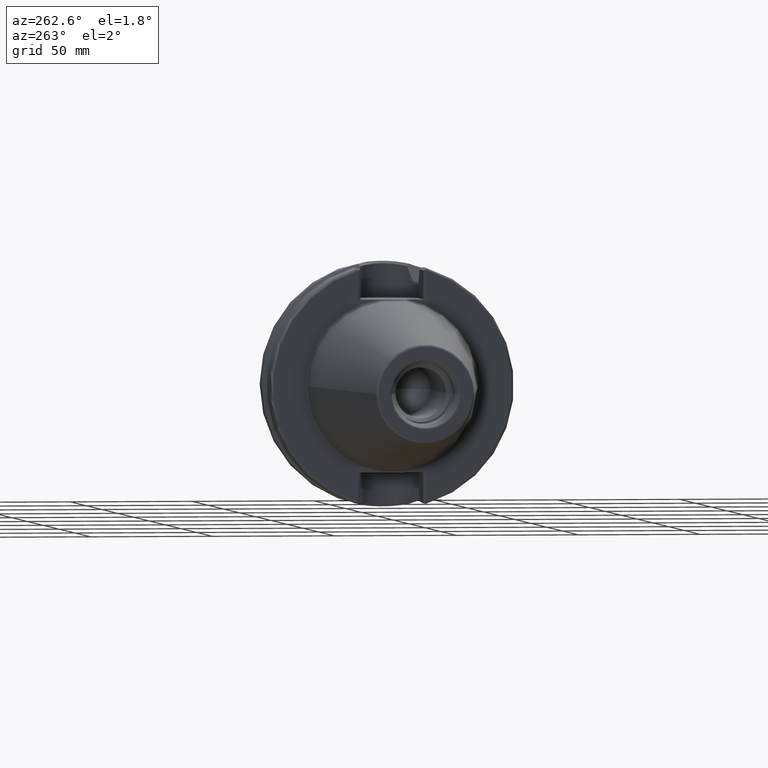
[diagram: clean part render]
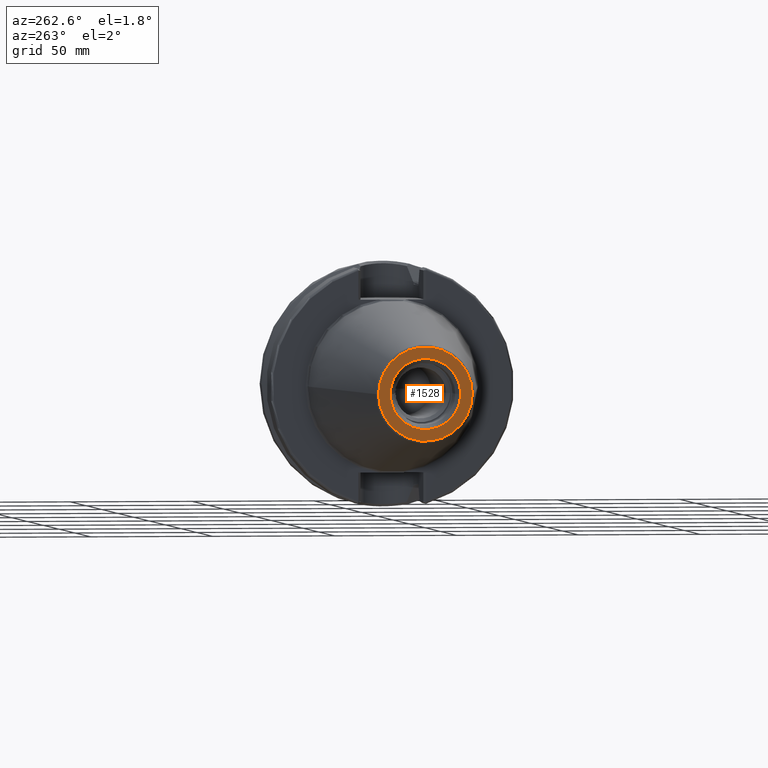
[diagram: same view with one face highlighted and labeled with its STEP entity id]
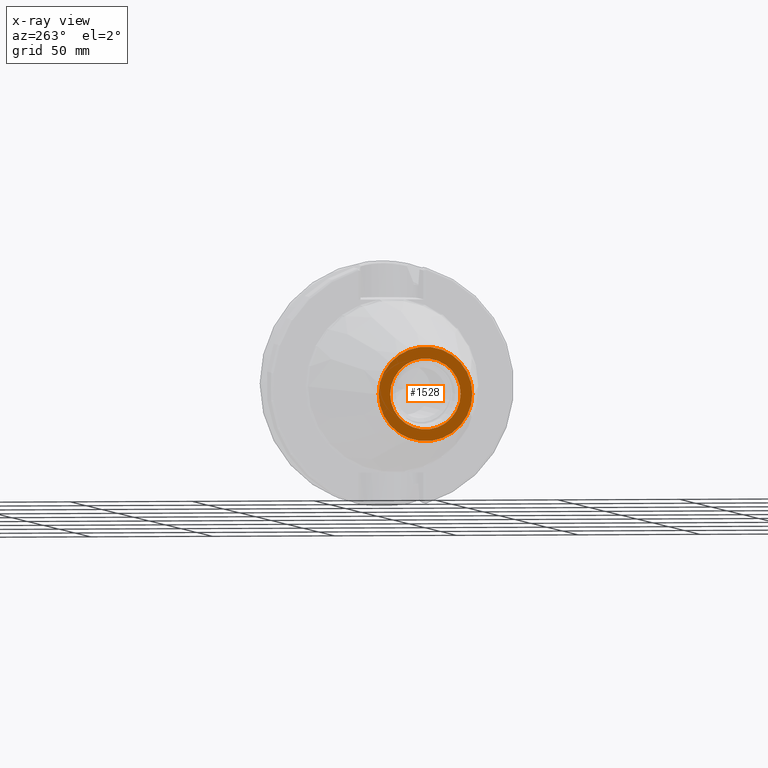
[diagram: x-ray of the same camera — body ghosted, the highlighted face saturated]
A machine part, auxiliary view. The second image highlights one B-rep face of the part: STEP entity #1528.
The next image is the same camera in x-ray: the body ghosted, the highlighted face saturated — about 0% of this face is hidden behind the body in this view.
In plain terms, the highlighted planar face has unit normal (1, 0, 0).
Its self-contained STEP definition (entity closure, byte-faithful):
#2=CARTESIAN_POINT('',(-1.018E2,0.E0,0.E0));
#3=DIRECTION('',(-1.E0,0.E0,0.E0));
#4=DIRECTION('',(0.E0,1.E0,0.E0));
#5=AXIS2_PLACEMENT_3D('',#2,#3,#4);
#7=CARTESIAN_POINT('',(-1.018E2,0.E0,0.E0));
#8=DIRECTION('',(1.E0,0.E0,0.E0));
#9=DIRECTION('',(0.E0,1.E0,0.E0));
#10=AXIS2_PLACEMENT_3D('',#7,#8,#9);
#12=CARTESIAN_POINT('',(-1.018E2,0.E0,0.E0));
#13=DIRECTION('',(1.E0,0.E0,0.E0));
#14=DIRECTION('',(0.E0,1.E0,0.E0));
#15=AXIS2_PLACEMENT_3D('',#12,#13,#14);
#17=CARTESIAN_POINT('',(-1.018E2,0.E0,0.E0));
#18=DIRECTION('',(1.E0,0.E0,0.E0));
#19=DIRECTION('',(0.E0,-1.E0,0.E0));
#20=AXIS2_PLACEMENT_3D('',#17,#18,#19);
#1245=CARTESIAN_POINT('',(-1.018E2,1.921319540766E1,0.E0));
#1247=VERTEX_POINT('',#1245);
#1249=CARTESIAN_POINT('',(-1.018E2,-1.921319540766E1,0.E0));
#1251=VERTEX_POINT('',#1249);
#1374=CARTESIAN_POINT('',(-1.018E2,1.446188021535E1,0.E0));
#1375=CARTESIAN_POINT('',(-1.018E2,-1.446188021535E1,0.E0));
#1376=VERTEX_POINT('',#1374);
#1377=VERTEX_POINT('',#1375);
#1511=CARTESIAN_POINT('',(-1.018E2,0.E0,0.E0));
#1512=DIRECTION('',(1.E0,0.E0,0.E0));
#1513=DIRECTION('',(0.E0,-1.E0,0.E0));
#1514=AXIS2_PLACEMENT_3D('',#1511,#1512,#1513);
#1515=PLANE('',#1514);
#1517=ORIENTED_EDGE('',*,*,#1516,.F.);
#1519=ORIENTED_EDGE('',*,*,#1518,.T.);
#1520=EDGE_LOOP('',(#1517,#1519));
#1521=FACE_OUTER_BOUND('',#1520,.F.);
#1523=ORIENTED_EDGE('',*,*,#1522,.F.);
#1525=ORIENTED_EDGE('',*,*,#1524,.F.);
#1526=EDGE_LOOP('',(#1523,#1525));
#1527=FACE_BOUND('',#1526,.F.);
#1528=ADVANCED_FACE('',(#1521,#1527),#1515,.F.);
#6=CIRCLE('',#5,1.921319540766E1);
#11=CIRCLE('',#10,1.921319540766E1);
#16=CIRCLE('',#15,1.446188021535E1);
#21=CIRCLE('',#20,1.446188021535E1);
#1516=EDGE_CURVE('',#1247,#1251,#6,.T.);
#1518=EDGE_CURVE('',#1247,#1251,#11,.T.);
#1522=EDGE_CURVE('',#1376,#1377,#16,.T.);
#1524=EDGE_CURVE('',#1377,#1376,#21,.T.);